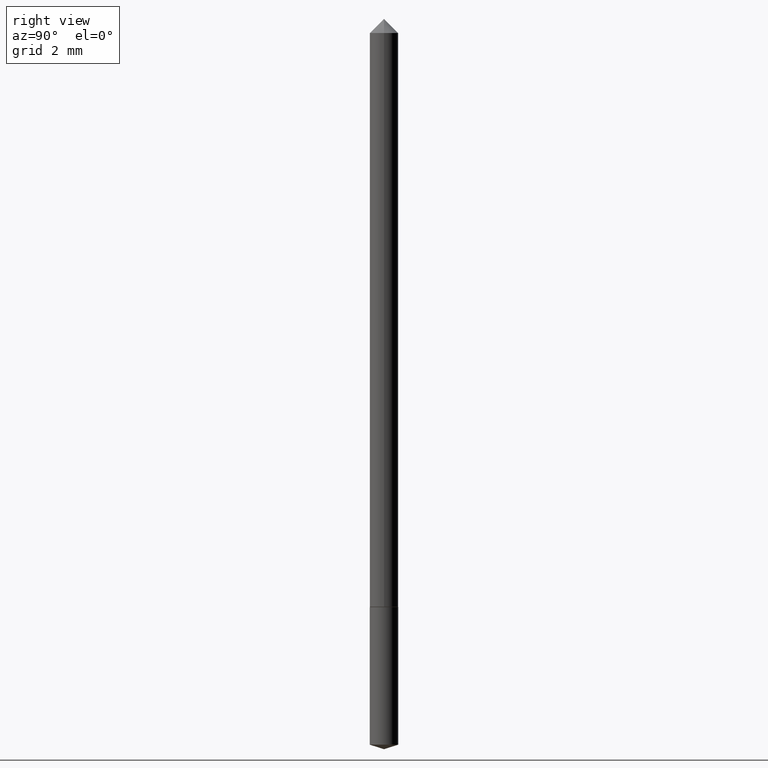
[diagram: clean part render]
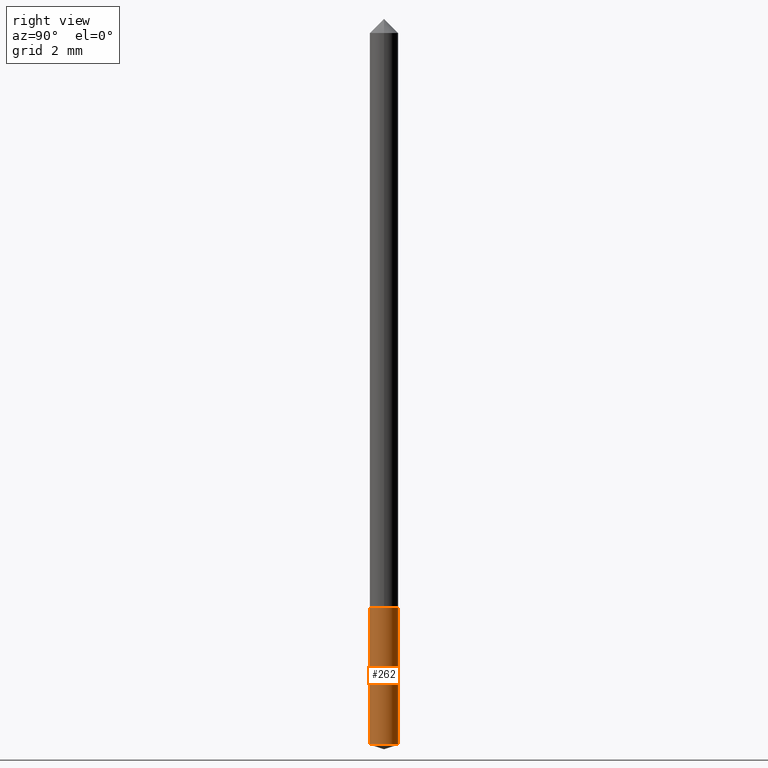
[diagram: same view with one face highlighted and labeled with its STEP entity id]
A machine part, right view. The second image highlights one B-rep face of the part: STEP entity #262.
In plain terms, the highlighted cylindrical surface (edge-blend (fillet) strip) has radius 0.5004 mm, axis along (-0, 0, 1).
Its self-contained STEP definition (entity closure, byte-faithful):
#31 = VERTEX_POINT ( 'NONE', #117 ) ;
#33 = ORIENTED_EDGE ( 'NONE', *, *, #324, .F. ) ;
#73 = DIRECTION ( 'NONE',  ( -2.445284545285118466E-29, 3.491745210939450966E-15, 1.000000000000000000 ) ) ;
#77 = DIRECTION ( 'NONE',  ( -2.445284545285118466E-29, 3.491745210939450966E-15, 1.000000000000000000 ) ) ;
#98 = CARTESIAN_POINT ( 'NONE',  ( -1.375643647503991970E-16, -0.01970000000000288187, -0.8267999999999998684 ) ) ;
#100 = CARTESIAN_POINT ( 'NONE',  ( 2.487957000930802816E-29, -3.552243650657558209E-15, -1.017388613859084190 ) ) ;
#109 = ORIENTED_EDGE ( 'NONE', *, *, #342, .T. ) ;
#112 = EDGE_LOOP ( 'NONE', ( #283, #109, #142, #33 ) ) ;
#117 = CARTESIAN_POINT ( 'NONE',  ( 1.399769189447645276E-16, 0.01969999999999644258, -1.017388613859084412 ) ) ;
#129 = DIRECTION ( 'NONE',  ( -2.445284545285118466E-29, 3.491745210939450966E-15, 1.000000000000000000 ) ) ;
#130 = DIRECTION ( 'NONE',  ( -6.982962677686265133E-15, -1.000000000000000000, 6.933624349401683764E-15 ) ) ;
#132 = CARTESIAN_POINT ( 'NONE',  ( 2.021913608953870993E-29, -2.886756770955512686E-15, -0.8268000000000000904 ) ) ;
#142 = ORIENTED_EDGE ( 'NONE', *, *, #233, .F. ) ;
#143 = VERTEX_POINT ( 'NONE', #147 ) ;
#147 = CARTESIAN_POINT ( 'NONE',  ( 1.399769189447645769E-16, 0.01969999999999711218, -0.8268000000000002014 ) ) ;
#152 = VECTOR ( 'NONE', #348, 39.37007874015748143 ) ;
#179 = EDGE_CURVE ( 'NONE', #281, #31, #221, .T. ) ;
#184 = CIRCLE ( 'NONE', #313, 0.01969999999999999876 ) ;
#185 = LINE ( 'NONE', #349, #279 ) ;
#187 = CARTESIAN_POINT ( 'NONE',  ( -1.375643647503991970E-16, -0.01970000000000288187, -0.8267999999999998684 ) ) ;
#208 = DIRECTION ( 'NONE',  ( -2.445284545285118466E-29, 3.491745210939450966E-15, 1.000000000000000000 ) ) ;
#218 = CARTESIAN_POINT ( 'NONE',  ( 2.021913608953870993E-29, -2.886756770955512686E-15, -0.8268000000000000904 ) ) ;
#221 = CIRCLE ( 'NONE', #340, 0.01969999999999999876 ) ;
#233 = EDGE_CURVE ( 'NONE', #359, #143, #184, .T. ) ;
#262 = ADVANCED_FACE ( 'NONE', ( #353 ), #358, .T. ) ;
#275 = DIRECTION ( 'NONE',  ( -6.982962677686265133E-15, -1.000000000000000000, 6.933624349401683764E-15 ) ) ;
#279 = VECTOR ( 'NONE', #208, 39.37007874015748143 ) ;
#281 = VERTEX_POINT ( 'NONE', #301 ) ;
#283 = ORIENTED_EDGE ( 'NONE', *, *, #179, .T. ) ;
#298 = DIRECTION ( 'NONE',  ( -6.982962677686265133E-15, -1.000000000000000000, 6.933624349401683764E-15 ) ) ;
#301 = CARTESIAN_POINT ( 'NONE',  ( -1.375643647503945132E-16, -0.01970000000000354454, -1.017388613859084190 ) ) ;
#313 = AXIS2_PLACEMENT_3D ( 'NONE', #132, #129, #298 ) ;
#324 = EDGE_CURVE ( 'NONE', #281, #359, #352, .T. ) ;
#330 = AXIS2_PLACEMENT_3D ( 'NONE', #218, #77, #130 ) ;
#340 = AXIS2_PLACEMENT_3D ( 'NONE', #100, #73, #275 ) ;
#342 = EDGE_CURVE ( 'NONE', #31, #143, #185, .T. ) ;
#348 = DIRECTION ( 'NONE',  ( -2.445284545285118466E-29, 3.491745210939450966E-15, 1.000000000000000000 ) ) ;
#349 = CARTESIAN_POINT ( 'NONE',  ( 1.399769189447599177E-16, 0.01969999999999711218, -0.8268000000000002014 ) ) ;
#352 = LINE ( 'NONE', #98, #152 ) ;
#353 = FACE_OUTER_BOUND ( 'NONE', #112, .T. ) ;
#358 = CYLINDRICAL_SURFACE ( 'NONE', #330, 0.01969999999999999876 ) ;
#359 = VERTEX_POINT ( 'NONE', #187 ) ;